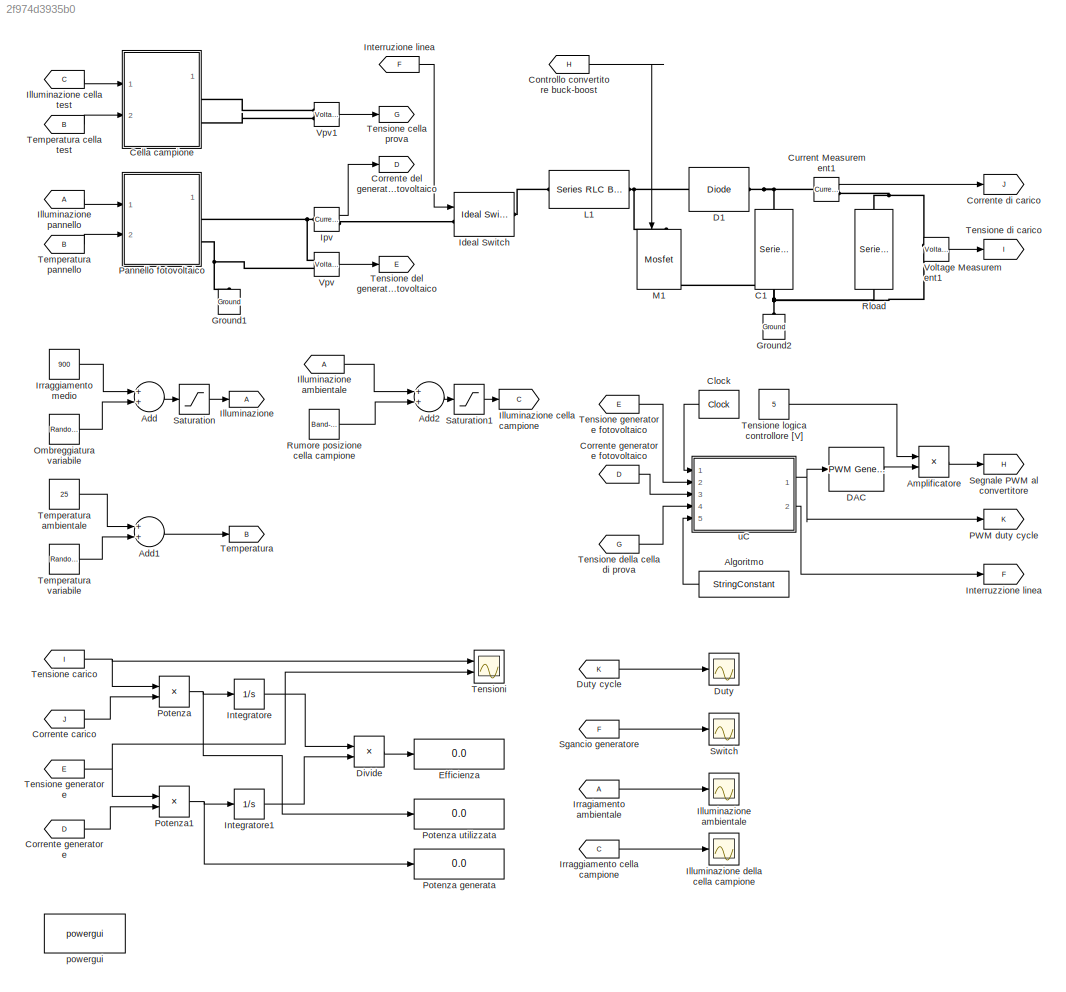
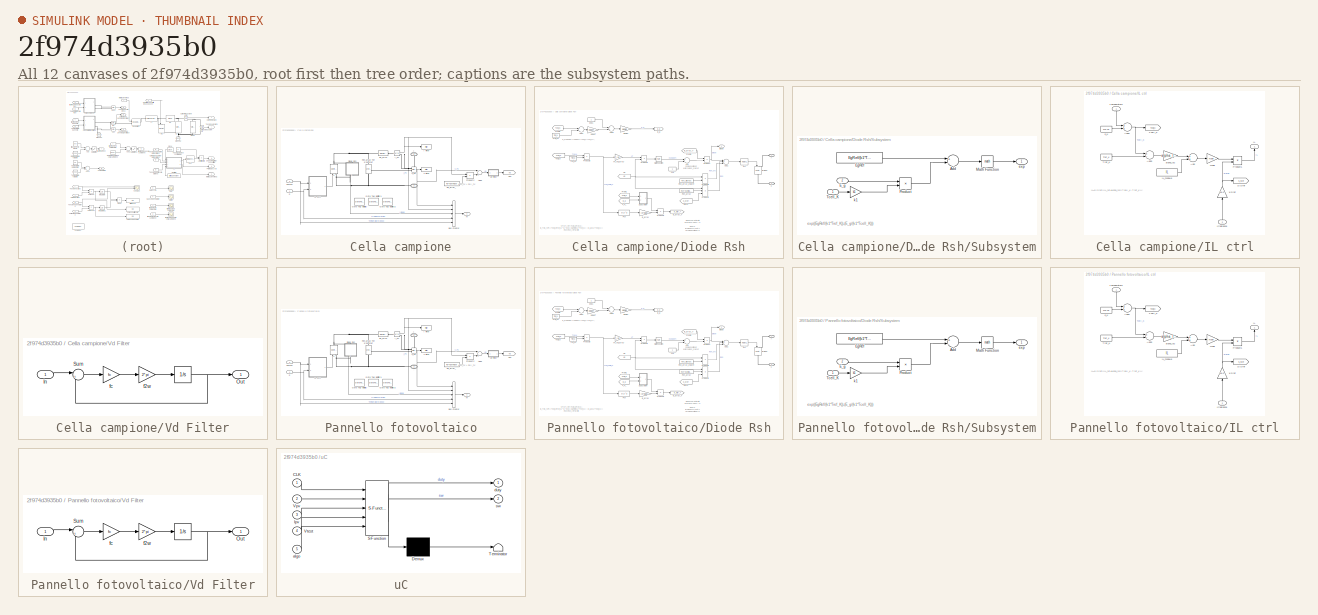
[diagram: thumbnail index - all 12 canvases of the model, root first then tree order]
MODEL slx_2f974d3935b0
KIND model
CONFIG AbsTol = auto
CONFIG EnableMultiTasking = off
CONFIG FixedStep = auto
CONFIG MaxStep = auto
CONFIG MinStep = auto
CONFIG RelTol = 1e-3
CONFIG SampleTimeConstraint = Unconstrained
CONFIG Solver = VariableStepAuto
CONFIG SolverName = VariableStepAuto
CONFIG StartTime = 0.0
CONFIG StopTime = 60
BLOCK [Sum] Add
  InputSameDT = off
  OutDataTypeStr = Inherit: Inherit via internal rule
  Ports = [2, 1]
  SaturateOnIntegerOverflow = off
BLOCK [Sum] Add1
  InputSameDT = off
  OutDataTypeStr = Inherit: Inherit via internal rule
  Ports = [2, 1]
  SaturateOnIntegerOverflow = off
BLOCK [Sum] Add2
  InputSameDT = off
  OutDataTypeStr = Inherit: Inherit via internal rule
  Ports = [2, 1]
  SaturateOnIntegerOverflow = off
BLOCK [StringConstant] Algoritmo
  String = "pao"
BLOCK [Product] Amplificatore
  InputSameDT = off
  OutDataTypeStr = Inherit: Inherit via internal rule
  Ports = [2, 1]
  RndMeth = Floor
  SaturateOnIntegerOverflow = off
BLOCK [Reference] C1  REF=powerlib/Elements/Series RLC Branch
  Ports = [0, 0, 0, 0, 0, 1, 1]
  SourceBlock = powerlib/Elements/Series RLC Branch
  SourceProductBaseCode = PS
  SourceProductName = Simscape Electrical
  SourceType = Series RLC Branch
BLOCK [SubSystem] Cella campione
  CloseFcn = sps_rtmsupport('CloseFcn',gcbh);
  CopyFcn = sps_rtmsupport('CopyFcn',gcbh);
  DeleteFcn = sps_rtmsupport('DeleteFcn',gcbh);
  DialogController = POWERSYS.PowerSysDialog
  LoadFcn = sps_rtmsupport('LoadFcn',gcbh);
  ModelCloseFcn = sps_rtmsupport('ModelCloseFcn',gcbh);
  NameChangeFcn = sps_rtmsupport('NameChangeFcn',gcbh);
  OpenFcn = %assignin('base','PVMaskOpening',1);\n%open_system(gcb,'mask')\n%assignin('base','PVMaskOpening',0);\nsps_rtmsupport('OpenFcn',gcbh, [3 6 7 23]);
  Ports = [2, 1, 0, 0, 0, 0, 2]
  PostSaveFcn = sps_rtmsupport('PostSaveFcn',gcbh);
  PreCopyFcn = sps_rtmsupport('PreCopyFcn',gcbh);
  PreDeleteFcn = sps_rtmsupport('PreDeleteFcn',gcbh);
  PreSaveFcn = sps_rtmsupport('PreSaveFcn',gcbh);
  RequestExecContextInheritance = off
  StartFcn = sps_rtmsupport('StartFcn',gcbh);
  StopFcn = sps_rtmsupport('StopFcn',gcbh);
  UndoDeleteFcn = sps_rtmsupport('UndoDeleteFcn',gcbh);
BLOCK [PMIOPort] Cella campione/+
  Side = Right
BLOCK [PMIOPort] Cella campione/-
  Port = 2
  Side = Right
BLOCK [Sum] Cella campione/Add1
  InputSameDT = off
  OutDataTypeStr = Inherit: Inherit via internal rule
  Ports = [2, 1]
  SaturateOnIntegerOverflow = off
BLOCK [BusCreator] Cella campione/Bus Creator
  DisplayOption = bar
  InheritFromInputs = on
  Inputs = 5
  Ports = [5, 1]
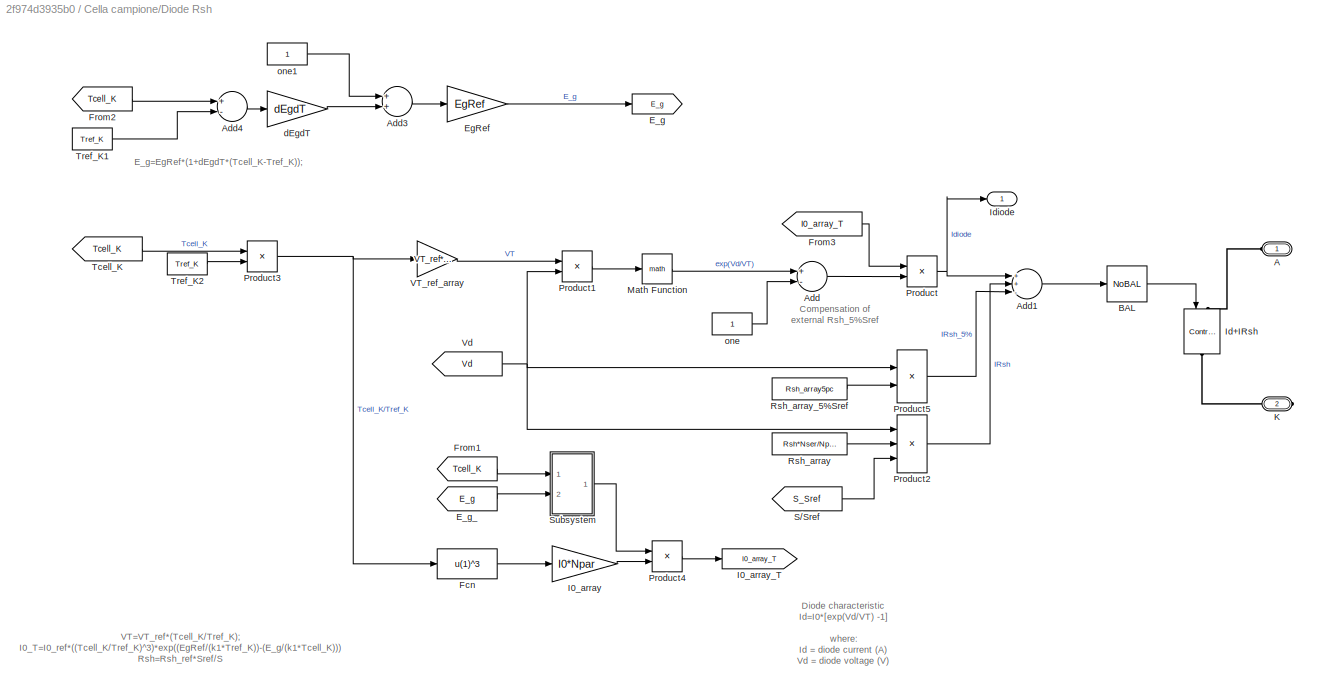
BLOCK [SubSystem] Cella campione/Diode Rsh
  Ports = [0, 1, 0, 0, 0, 1, 1]
  RequestExecContextInheritance = off
BLOCK [PMIOPort] Cella campione/Diode Rsh/A
  Side = Left
BLOCK [Sum] Cella campione/Diode Rsh/Add
  InputSameDT = off
  Inputs = +-
  OutDataTypeStr = Inherit: Inherit via internal rule
  Ports = [2, 1]
  SaturateOnIntegerOverflow = off
BLOCK [Sum] Cella campione/Diode Rsh/Add1
  InputSameDT = off
  Inputs = ++-
  OutDataTypeStr = Inherit: Inherit via internal rule
  Ports = [3, 1]
  SaturateOnIntegerOverflow = off
BLOCK [Sum] Cella campione/Diode Rsh/Add3
  InputSameDT = off
  OutDataTypeStr = Inherit: Inherit via internal rule
  Ports = [2, 1]
  SaturateOnIntegerOverflow = off
BLOCK [Sum] Cella campione/Diode Rsh/Add4
  InputSameDT = off
  Inputs = +-
  OutDataTypeStr = Inherit: Inherit via internal rule
  Ports = [2, 1]
  SaturateOnIntegerOverflow = off
BLOCK [Reference] Cella campione/Diode Rsh/BAL  REF=spsPVarrayModel/NoBAL
  Ports = [1, 1]
  SourceBlock = spsPVarrayModel/NoBAL
  SourceProductBaseCode = PS
  SourceProductName = Simscape Electrical
  SourceType = SubSystem
BLOCK [Goto] Cella campione/Diode Rsh/E_g
  GotoTag = E_g
BLOCK [From] Cella campione/Diode Rsh/E_g_
  GotoTag = E_g
BLOCK [Gain] Cella campione/Diode Rsh/EgRef
  Gain = EgRef
  OutDataTypeStr = Inherit: Inherit via internal rule
  ParamDataTypeStr = Inherit: Inherit via internal rule
  SaturateOnIntegerOverflow = off
BLOCK [Fcn] Cella campione/Diode Rsh/Fcn
  Expr = u(1)^3
BLOCK [From] Cella campione/Diode Rsh/From1
  GotoTag = Tcell_K
  TagVisibility = scoped
BLOCK [From] Cella campione/Diode Rsh/From2
  GotoTag = Tcell_K
  TagVisibility = scoped
BLOCK [From] Cella campione/Diode Rsh/From3
  GotoTag = I0_array_T
BLOCK [Gain] Cella campione/Diode Rsh/I0_array
  Gain = I0*Npar
  OutDataTypeStr = Inherit: Inherit via internal rule
  ParamDataTypeStr = Inherit: Inherit via internal rule
  SaturateOnIntegerOverflow = off
BLOCK [Goto] Cella campione/Diode Rsh/I0_array_T
  GotoTag = I0_array_T
BLOCK [Reference] Cella campione/Diode Rsh/Id+IRsh  REF=powerlib/Electrical
Sources/Controlled Current Source
  Ports = [1, 0, 0, 0, 0, 1, 1]
  SourceBlock = powerlib/Electrical\nSources/Controlled Current Source
  SourceProductBaseCode = PS
  SourceProductName = Simscape Electrical
  SourceType = Controlled Current Source
BLOCK [Outport] Cella campione/Diode Rsh/Idiode
  IconDisplay = Port number
BLOCK [PMIOPort] Cella campione/Diode Rsh/K
  Port = 2
  Side = Right
BLOCK [Math] Cella campione/Diode Rsh/Math Function
  Ports = [1, 1]
BLOCK [Product] Cella campione/Diode Rsh/Product
  InputSameDT = off
  OutDataTypeStr = Inherit: Inherit via internal rule
  Ports = [2, 1]
  SaturateOnIntegerOverflow = off
BLOCK [Product] Cella campione/Diode Rsh/Product1
  InputSameDT = off
  Inputs = /*
  OutDataTypeStr = Inherit: Inherit via internal rule
  Ports = [2, 1]
  SaturateOnIntegerOverflow = off
BLOCK [Product] Cella campione/Diode Rsh/Product2
  InputSameDT = off
  Inputs = */*
  OutDataTypeStr = Inherit: Inherit via internal rule
  Ports = [3, 1]
  SaturateOnIntegerOverflow = off
BLOCK [Product] Cella campione/Diode Rsh/Product3
  InputSameDT = off
  Inputs = */
  OutDataTypeStr = Inherit: Inherit via internal rule
  Ports = [2, 1]
  SaturateOnIntegerOverflow = off
BLOCK [Product] Cella campione/Diode Rsh/Product4
  InputSameDT = off
  Inputs = **
  OutDataTypeStr = Inherit: Inherit via internal rule
  Ports = [2, 1]
  SaturateOnIntegerOverflow = off
BLOCK [Product] Cella campione/Diode Rsh/Product5
  InputSameDT = off
  Inputs = */
  OutDataTypeStr = Inherit: Inherit via internal rule
  Ports = [2, 1]
  SaturateOnIntegerOverflow = off
BLOCK [Constant] Cella campione/Diode Rsh/Rsh_array
  Value = Rsh*Nser/Npar
BLOCK [Constant] Cella campione/Diode Rsh/Rsh_array_5%Sref
  Value = Rsh_array5pc
BLOCK [From] Cella campione/Diode Rsh/S//Sref
  GotoTag = S_Sref
  TagVisibility = scoped
BLOCK [SubSystem] Cella campione/Diode Rsh/Subsystem
  Ports = [2, 1]
  RequestExecContextInheritance = off
BLOCK [Sum] Cella campione/Diode Rsh/Subsystem/Add
  InputSameDT = off
  Inputs = +-
  OutDataTypeStr = Inherit: Inherit via internal rule
  Ports = [2, 1]
  SaturateOnIntegerOverflow = off
BLOCK [Inport] Cella campione/Diode Rsh/Subsystem/E_g
  IconDisplay = Port number
  Port = 2
BLOCK [Constant] Cella campione/Diode Rsh/Subsystem/EgRef
  Value = EgRef/(k1*Tref_K)
BLOCK [Math] Cella campione/Diode Rsh/Subsystem/Math Function
  Ports = [1, 1]
BLOCK [Product] Cella campione/Diode Rsh/Subsystem/Product
  InputSameDT = off
  Inputs = */
  OutDataTypeStr = Inherit: Inherit via internal rule
  Ports = [2, 1]
  RndMeth = Floor
  SaturateOnIntegerOverflow = off
BLOCK [Inport] Cella campione/Diode Rsh/Subsystem/Tcell_K
  IconDisplay = Port number
BLOCK [Outport] Cella campione/Diode Rsh/Subsystem/exp
  IconDisplay = Port number
BLOCK [Gain] Cella campione/Diode Rsh/Subsystem/k1
  Gain = k1
  OutDataTypeStr = Inherit: Inherit via internal rule
  ParamDataTypeStr = Inherit: Inherit via internal rule
  SaturateOnIntegerOverflow = off
BLOCK [From] Cella campione/Diode Rsh/Tcell_K
  GotoTag = Tcell_K
  TagVisibility = scoped
BLOCK [Constant] Cella campione/Diode Rsh/Tref_K1
  Value = Tref_K
BLOCK [Constant] Cella campione/Diode Rsh/Tref_K2
  Value = Tref_K
BLOCK [Gain] Cella campione/Diode Rsh/VT_ref_array
  Gain = VT_ref*Nser
  OutDataTypeStr = Inherit: Inherit via internal rule
  ParamDataTypeStr = Inherit: Inherit via internal rule
  SaturateOnIntegerOverflow = off
BLOCK [From] Cella campione/Diode Rsh/Vd
  GotoTag = Vd
  TagVisibility = scoped
BLOCK [Gain] Cella campione/Diode Rsh/dEgdT
  Gain = dEgdT
  OutDataTypeStr = Inherit: Inherit via internal rule
  ParamDataTypeStr = Inherit: Inherit via internal rule
  SaturateOnIntegerOverflow = off
BLOCK [Constant] Cella campione/Diode Rsh/one
BLOCK [Constant] Cella campione/Diode Rsh/one1
BLOCK [GotoTagVisibility] Cella campione/Goto Tag Visibility
  GotoTag = S_Sref
BLOCK [GotoTagVisibility] Cella campione/Goto Tag Visibility1
  GotoTag = Vd
BLOCK [GotoTagVisibility] Cella campione/Goto Tag Visibility2
  GotoTag = Tcell_K
BLOCK [Reference] Cella campione/I Filter  REF=spsPVarrayModel/Filter
  Commented = on
  Ports = [1, 1]
  SourceBlock = spsPVarrayModel/Filter
  SourceProductBaseCode = PS
  SourceProductName = Simscape Electrical
  SourceType = SubSystem
BLOCK [Reference] Cella campione/IL  REF=powerlib/Electrical
Sources/Controlled Current Source
  Ports = [1, 0, 0, 0, 0, 1, 1]
  SourceBlock = powerlib/Electrical\nSources/Controlled Current Source
  SourceProductBaseCode = PS
  SourceProductName = Simscape Electrical
  SourceType = Controlled Current Source
BLOCK [SubSystem] Cella campione/IL ctrl
  Ports = [2, 1]
  RequestExecContextInheritance = off
BLOCK [Constant] Cella campione/IL ctrl/0_K
  Value = 273.15
BLOCK [Gain] Cella campione/IL ctrl/1//Sref
  Gain = 1e-3
  OutDataTypeStr = Inherit: Inherit via internal rule
  ParamDataTypeStr = Inherit: Inherit via internal rule
  SaturateOnIntegerOverflow = off
BLOCK [Sum] Cella campione/IL ctrl/Add
  InputSameDT = off
  OutDataTypeStr = Inherit: Inherit via internal rule
  Ports = [2, 1]
  SaturateOnIntegerOverflow = off
BLOCK [Sum] Cella campione/IL ctrl/Add2
  InputSameDT = off
  OutDataTypeStr = Inherit: Inherit via internal rule
  Ports = [2, 1]
  SaturateOnIntegerOverflow = off
BLOCK [Sum] Cella campione/IL ctrl/Add3
  InputSameDT = off
  Inputs = +-
  OutDataTypeStr = Inherit: Inherit via internal rule
  Ports = [2, 1]
  SaturateOnIntegerOverflow = off
BLOCK [Outport] Cella campione/IL ctrl/IL
  IconDisplay = Port number
BLOCK [Constant] Cella campione/IL ctrl/IL_module
  Value = IL
BLOCK [Inport] Cella campione/IL ctrl/Irradiance
  IconDisplay = Port number
  Port = 2
BLOCK [Gain] Cella campione/IL ctrl/Npar
  Gain = Npar
  OutDataTypeStr = Inherit: Inherit via internal rule
  ParamDataTypeStr = Inherit: Inherit via internal rule
  SaturateOnIntegerOverflow = off
BLOCK [Product] Cella campione/IL ctrl/Product1
  InputSameDT = off
  Inputs = **
  OutDataTypeStr = Inherit: Inherit via internal rule
  Ports = [2, 1]
  SaturateOnIntegerOverflow = off
BLOCK [Goto] Cella campione/IL ctrl/S//Sref
  GotoTag = S_Sref
  TagVisibility = scoped
BLOCK [Goto] Cella campione/IL ctrl/Tcell_K
  GotoTag = Tcell_K
  TagVisibility = scoped
BLOCK [Inport] Cella campione/IL ctrl/Temperature
  IconDisplay = Port number
BLOCK [Constant] Cella campione/IL ctrl/Tref_K
  Value = Tref_K
BLOCK [Gain] Cella campione/IL ctrl/alpha_Isc
  Gain = alpha_Isc
  OutDataTypeStr = Inherit: Inherit via internal rule
  ParamDataTypeStr = Inherit: Inherit via internal rule
  SaturateOnIntegerOverflow = off
BLOCK [Reference] Cella campione/I_PV  REF=powerlib/Measurements/Current Measurement
  Ports = [0, 1, 0, 0, 0, 1, 1]
  SourceBlock = powerlib/Measurements/Current Measurement
  SourceProductBaseCode = PS
  SourceProductName = Simscape Electrical
  SourceType = Current Measurement
BLOCK [Product] Cella campione/Product2
  InputSameDT = off
  Inputs = **
  OutDataTypeStr = Inherit: Inherit via internal rule
  Ports = [2, 1]
  SaturateOnIntegerOverflow = off
BLOCK [Reference] Cella campione/Rs_array  REF=powerlib/Elements/Series RLC Branch
  Ports = [0, 0, 0, 0, 0, 1, 1]
  SourceBlock = powerlib/Elements/Series RLC Branch
  SourceProductBaseCode = PS
  SourceProductName = Simscape Electrical
  SourceType = Series RLC Branch
BLOCK [Constant] Cella campione/Rs_array_
  Value = Rs*Nser/Npar
BLOCK [Reference] Cella campione/Rsh_array For 0.05*Sref  REF=powerlib/Elements/Series RLC Branch
  Ports = [0, 0, 0, 0, 0, 1, 1]
  SourceBlock = powerlib/Elements/Series RLC Branch
  SourceProductBaseCode = PS
  SourceProductName = Simscape Electrical
  SourceType = Series RLC Branch
BLOCK [Inport] Cella campione/S
  IconDisplay = Port number
BLOCK [Inport] Cella campione/TempC
  IconDisplay = Port number
  Port = 2
BLOCK [Reference] Cella campione/V Filter  REF=spsPVarrayModel/Filter
  Commented = on
  Ports = [1, 1]
  SourceBlock = spsPVarrayModel/Filter
  SourceProductBaseCode = PS
  SourceProductName = Simscape Electrical
  SourceType = SubSystem
BLOCK [Reference] Cella campione/V_PV  REF=powerlib/Measurements/Voltage Measurement
  Ports = [0, 1, 0, 0, 0, 2]
  SourceBlock = powerlib/Measurements/Voltage Measurement
  SourceProductBaseCode = PS
  SourceProductName = Simscape Electrical
  SourceType = Voltage Measurement
BLOCK [SubSystem] Cella campione/Vd Filter
  Ports = [1, 1]
  RequestExecContextInheritance = off
BLOCK [Integrator] Cella campione/Vd Filter/ 
  InitialCondition = Voc*Nser
  Ports = [1, 1]
BLOCK [Inport] Cella campione/Vd Filter/In
  IconDisplay = Port number
BLOCK [Outport] Cella campione/Vd Filter/Out
  IconDisplay = Port number
BLOCK [Sum] Cella campione/Vd Filter/Sum
  IconShape = round
  InputSameDT = off
  Inputs = |+-
  OutDataTypeStr = Inherit: Inherit via internal rule
  Ports = [2, 1]
  SaturateOnIntegerOverflow = off
BLOCK [Gain] Cella campione/Vd Filter/f2w
  Gain = 2*pi
  OutDataTypeStr = Inherit: Inherit via internal rule
  ParamDataTypeStr = Inherit: Inherit via internal rule
  SaturateOnIntegerOverflow = off
BLOCK [Gain] Cella campione/Vd Filter/fc
  Gain = fc
  OutDataTypeStr = Inherit: Inherit via internal rule
  ParamDataTypeStr = Inherit: Inherit via internal rule
  SaturateOnIntegerOverflow = off
BLOCK [Goto] Cella campione/Vd1
  GotoTag = Vd
  TagVisibility = scoped
BLOCK [Outport] Cella campione/m
  IconDisplay = Port number
BLOCK [Reference] Clock   REF=simulink_extras/Flip Flops/Clock
  Ports = [0, 1]
  SourceBlock = simulink_extras/Flip Flops/Clock
  SourceProductBaseCode = SL
  SourceProductName = Simulink
  SourceType = Digital clock
BLOCK [From] Controllo convertitore buck-boost
  GotoTag = H
BLOCK [From] Corrente carico
  GotoTag = J
BLOCK [Goto] Corrente del generatore fotovoltaico
  GotoTag = D
BLOCK [Goto] Corrente di carico
  GotoTag = J
BLOCK [From] Corrente generatore
  GotoTag = D
BLOCK [From] Corrente generatore fotovoltaico
  GotoTag = D
BLOCK [Reference] Current Measurement1  REF=powerlib/Measurements/Current Measurement
  Ports = [0, 1, 0, 0, 0, 1, 1]
  SourceBlock = powerlib/Measurements/Current Measurement
  SourceProductBaseCode = PS
  SourceProductName = Simscape Electrical
  SourceType = Current Measurement
  UserDataPersistent = on
BLOCK [Reference] D1  REF=powerlib/Power
Electronics/Diode
  Ports = [0, 0, 0, 0, 0, 1, 1]
  SourceBlock = powerlib/Power\nElectronics/Diode
  SourceProductBaseCode = PS
  SourceProductName = Simscape Electrical
  SourceType = Diode
BLOCK [Reference] DAC  REF=powerlib_meascontrol/Pulse & Signal
Generators/PWM Generator
(DC-DC)
  Ports = [1, 1]
  SourceBlock = powerlib_meascontrol/Pulse & Signal\nGenerators/PWM Generator\n(DC-DC)
  SourceProductBaseCode = PS
  SourceProductName = Simscape Electrical
  SourceType = PWM Generator (DC-DC)
BLOCK [Product] Divide
  InputSameDT = off
  Inputs = */
  OutDataTypeStr = Inherit: Inherit via internal rule
  Ports = [2, 1]
  RndMeth = Floor
  SaturateOnIntegerOverflow = off
BLOCK [Scope] Duty
  Floating = off
  NumInputPorts = 1
  Ports = [1]
  ScopeSpecificationString = Simulink.scopes.TimeScopeBlockCfg('CurrentConfiguration', extmgr.ConfigurationSet(extmgr.Configuration('Core','General UI',true),extmgr.Configuration('Core','Source UI',true),extmgr.Configuration('Sources','WiredSimulink',true,'DataLoggingVariableName','ScopeData1'),extmgr.Configuration('Visuals','Time Domain',true,'SerializedDisplays',{struct('MinYLimReal','0.19682','MaxYLimReal','0.64321','YLabe...<+1410ch>
BLOCK [From] Duty cycle
  GotoTag = K
BLOCK [Display] Efficienza
  Decimation = 1
  Ports = [1]
BLOCK [Reference] Ground1  REF=powerlib/Elements/Ground
  Ports = [0, 0, 0, 0, 0, 1]
  SourceBlock = powerlib/Elements/Ground
  SourceProductBaseCode = PS
  SourceProductName = Simscape Electrical
  SourceType = Ground
BLOCK [Reference] Ground2  REF=powerlib/Elements/Ground
  Ports = [0, 0, 0, 0, 0, 1]
  SourceBlock = powerlib/Elements/Ground
  SourceProductBaseCode = PS
  SourceProductName = Simscape Electrical
  SourceType = Ground
BLOCK [Reference] Ideal Switch  REF=powerlib/Power
Electronics/Ideal Switch
  Ports = [1, 0, 0, 0, 0, 1, 1]
  SourceBlock = powerlib/Power\nElectronics/Ideal Switch
  SourceProductBaseCode = PS
  SourceProductName = Simscape Electrical
  SourceType = Ideal Switch
BLOCK [Goto] Illuminazione
BLOCK [From] Illuminazione ambientale
BLOCK [Goto] Illuminazione cella campione
  GotoTag = C
BLOCK [From] Illuminazione cella test
  GotoTag = C
BLOCK [Scope] Illuminazione della cella campione
  Floating = off
  NumInputPorts = 1
  Ports = [1]
  ScopeSpecificationString = Simulink.scopes.TimeScopeBlockCfg('CurrentConfiguration', extmgr.ConfigurationSet(extmgr.Configuration('Core','General UI',true),extmgr.Configuration('Core','Source UI',true),extmgr.Configuration('Sources','WiredSimulink',true,'DataLoggingVariableName','ScopeData2'),extmgr.Configuration('Visuals','Time Domain',true,'SerializedDisplays',{struct('MinYLimReal','888.85096','MaxYLimReal','922.30439','Y...<+1384ch>
BLOCK [From] Illuminazione pannello
BLOCK [Integrator] Integratore
  Ports = [1, 1]
BLOCK [Integrator] Integratore1
  Ports = [1, 1]
BLOCK [From] Interruzione linea
  GotoTag = F
BLOCK [Goto] Interruzzione linea
  GotoTag = F
BLOCK [Reference] Ipv  REF=powerlib/Measurements/Current Measurement
  Ports = [0, 1, 0, 0, 0, 1, 1]
  SourceBlock = powerlib/Measurements/Current Measurement
  SourceProductBaseCode = PS
  SourceProductName = Simscape Electrical
  SourceType = Current Measurement
  UserDataPersistent = on
BLOCK [From] Irraggiamento cella campione
  GotoTag = C
BLOCK [Constant] Irraggiamento medio
  Value = 900
BLOCK [From] Irragiamento ambientale
BLOCK [Reference] L1  REF=powerlib/Elements/Series RLC Branch
  Ports = [0, 0, 0, 0, 0, 1, 1]
  SourceBlock = powerlib/Elements/Series RLC Branch
  SourceProductBaseCode = PS
  SourceProductName = Simscape Electrical
  SourceType = Series RLC Branch
BLOCK [Reference] M1  REF=powerlib/Power
Electronics/Mosfet
  Ports = [1, 0, 0, 0, 0, 1, 1]
  SourceBlock = powerlib/Power\nElectronics/Mosfet
  SourceProductBaseCode = PS
  SourceProductName = Simscape Electrical
  SourceType = Mosfet
BLOCK [RandomNumber] Ombreggiatura variabile
  SampleTime = 0.5
  Variance = 100
BLOCK [Goto] PWM duty cycle
  GotoTag = K
BLOCK [SubSystem] Pannello fotovoltaico
  CloseFcn = sps_rtmsupport('CloseFcn',gcbh);
  CopyFcn = sps_rtmsupport('CopyFcn',gcbh);
  DeleteFcn = sps_rtmsupport('DeleteFcn',gcbh);
  DialogController = POWERSYS.PowerSysDialog
  LoadFcn = sps_rtmsupport('LoadFcn',gcbh);
  ModelCloseFcn = sps_rtmsupport('ModelCloseFcn',gcbh);
  NameChangeFcn = sps_rtmsupport('NameChangeFcn',gcbh);
  OpenFcn = %assignin('base','PVMaskOpening',1);\n%open_system(gcb,'mask')\n%assignin('base','PVMaskOpening',0);\nsps_rtmsupport('OpenFcn',gcbh, [3 6 7 23]);
  Ports = [2, 1, 0, 0, 0, 0, 2]
  PostSaveFcn = sps_rtmsupport('PostSaveFcn',gcbh);
  PreCopyFcn = sps_rtmsupport('PreCopyFcn',gcbh);
  PreDeleteFcn = sps_rtmsupport('PreDeleteFcn',gcbh);
  PreSaveFcn = sps_rtmsupport('PreSaveFcn',gcbh);
  RequestExecContextInheritance = off
  StartFcn = sps_rtmsupport('StartFcn',gcbh);
  StopFcn = sps_rtmsupport('StopFcn',gcbh);
  UndoDeleteFcn = sps_rtmsupport('UndoDeleteFcn',gcbh);
BLOCK [PMIOPort] Pannello fotovoltaico/+
  Side = Right
BLOCK [PMIOPort] Pannello fotovoltaico/-
  Port = 2
  Side = Right
BLOCK [Sum] Pannello fotovoltaico/Add1
  InputSameDT = off
  OutDataTypeStr = Inherit: Inherit via internal rule
  Ports = [2, 1]
  SaturateOnIntegerOverflow = off
BLOCK [BusCreator] Pannello fotovoltaico/Bus Creator
  DisplayOption = bar
  InheritFromInputs = on
  Inputs = 5
  Ports = [5, 1]
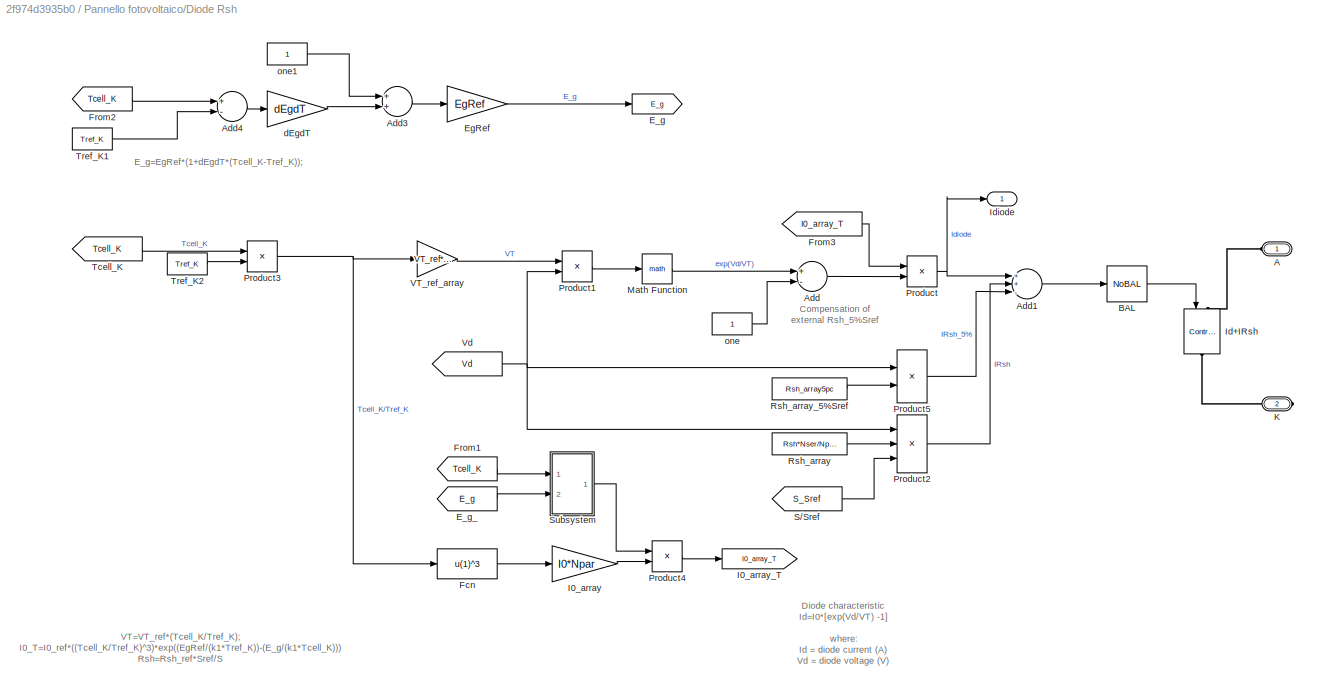
BLOCK [SubSystem] Pannello fotovoltaico/Diode Rsh
  Ports = [0, 1, 0, 0, 0, 1, 1]
  RequestExecContextInheritance = off
BLOCK [PMIOPort] Pannello fotovoltaico/Diode Rsh/A
  Side = Left
BLOCK [Sum] Pannello fotovoltaico/Diode Rsh/Add
  InputSameDT = off
  Inputs = +-
  OutDataTypeStr = Inherit: Inherit via internal rule
  Ports = [2, 1]
  SaturateOnIntegerOverflow = off
BLOCK [Sum] Pannello fotovoltaico/Diode Rsh/Add1
  InputSameDT = off
  Inputs = ++-
  OutDataTypeStr = Inherit: Inherit via internal rule
  Ports = [3, 1]
  SaturateOnIntegerOverflow = off
BLOCK [Sum] Pannello fotovoltaico/Diode Rsh/Add3
  InputSameDT = off
  OutDataTypeStr = Inherit: Inherit via internal rule
  Ports = [2, 1]
  SaturateOnIntegerOverflow = off
BLOCK [Sum] Pannello fotovoltaico/Diode Rsh/Add4
  InputSameDT = off
  Inputs = +-
  OutDataTypeStr = Inherit: Inherit via internal rule
  Ports = [2, 1]
  SaturateOnIntegerOverflow = off
BLOCK [Reference] Pannello fotovoltaico/Diode Rsh/BAL  REF=spsPVarrayModel/NoBAL
  Ports = [1, 1]
  SourceBlock = spsPVarrayModel/NoBAL
  SourceProductBaseCode = PS
  SourceProductName = Simscape Electrical
  SourceType = SubSystem
BLOCK [Goto] Pannello fotovoltaico/Diode Rsh/E_g
  GotoTag = E_g
BLOCK [From] Pannello fotovoltaico/Diode Rsh/E_g_
  GotoTag = E_g
BLOCK [Gain] Pannello fotovoltaico/Diode Rsh/EgRef
  Gain = EgRef
  OutDataTypeStr = Inherit: Inherit via internal rule
  ParamDataTypeStr = Inherit: Inherit via internal rule
  SaturateOnIntegerOverflow = off
BLOCK [Fcn] Pannello fotovoltaico/Diode Rsh/Fcn
  Expr = u(1)^3
BLOCK [From] Pannello fotovoltaico/Diode Rsh/From1
  GotoTag = Tcell_K
  TagVisibility = scoped
BLOCK [From] Pannello fotovoltaico/Diode Rsh/From2
  GotoTag = Tcell_K
  TagVisibility = scoped
BLOCK [From] Pannello fotovoltaico/Diode Rsh/From3
  GotoTag = I0_array_T
BLOCK [Gain] Pannello fotovoltaico/Diode Rsh/I0_array
  Gain = I0*Npar
  OutDataTypeStr = Inherit: Inherit via internal rule
  ParamDataTypeStr = Inherit: Inherit via internal rule
  SaturateOnIntegerOverflow = off
BLOCK [Goto] Pannello fotovoltaico/Diode Rsh/I0_array_T
  GotoTag = I0_array_T
BLOCK [Reference] Pannello fotovoltaico/Diode Rsh/Id+IRsh  REF=powerlib/Electrical
Sources/Controlled Current Source
  Ports = [1, 0, 0, 0, 0, 1, 1]
  SourceBlock = powerlib/Electrical\nSources/Controlled Current Source
  SourceProductBaseCode = PS
  SourceProductName = Simscape Electrical
  SourceType = Controlled Current Source
BLOCK [Outport] Pannello fotovoltaico/Diode Rsh/Idiode
  IconDisplay = Port number
BLOCK [PMIOPort] Pannello fotovoltaico/Diode Rsh/K
  Port = 2
  Side = Right
BLOCK [Math] Pannello fotovoltaico/Diode Rsh/Math Function
  Ports = [1, 1]
BLOCK [Product] Pannello fotovoltaico/Diode Rsh/Product
  InputSameDT = off
  OutDataTypeStr = Inherit: Inherit via internal rule
  Ports = [2, 1]
  SaturateOnIntegerOverflow = off
BLOCK [Product] Pannello fotovoltaico/Diode Rsh/Product1
  InputSameDT = off
  Inputs = /*
  OutDataTypeStr = Inherit: Inherit via internal rule
  Ports = [2, 1]
  SaturateOnIntegerOverflow = off
BLOCK [Product] Pannello fotovoltaico/Diode Rsh/Product2
  InputSameDT = off
  Inputs = */*
  OutDataTypeStr = Inherit: Inherit via internal rule
  Ports = [3, 1]
  SaturateOnIntegerOverflow = off
BLOCK [Product] Pannello fotovoltaico/Diode Rsh/Product3
  InputSameDT = off
  Inputs = */
  OutDataTypeStr = Inherit: Inherit via internal rule
  Ports = [2, 1]
  SaturateOnIntegerOverflow = off
BLOCK [Product] Pannello fotovoltaico/Diode Rsh/Product4
  InputSameDT = off
  Inputs = **
  OutDataTypeStr = Inherit: Inherit via internal rule
  Ports = [2, 1]
  SaturateOnIntegerOverflow = off
BLOCK [Product] Pannello fotovoltaico/Diode Rsh/Product5
  InputSameDT = off
  Inputs = */
  OutDataTypeStr = Inherit: Inherit via internal rule
  Ports = [2, 1]
  SaturateOnIntegerOverflow = off
BLOCK [Constant] Pannello fotovoltaico/Diode Rsh/Rsh_array
  Value = Rsh*Nser/Npar
BLOCK [Constant] Pannello fotovoltaico/Diode Rsh/Rsh_array_5%Sref
  Value = Rsh_array5pc
BLOCK [From] Pannello fotovoltaico/Diode Rsh/S//Sref
  GotoTag = S_Sref
  TagVisibility = scoped
BLOCK [SubSystem] Pannello fotovoltaico/Diode Rsh/Subsystem
  Ports = [2, 1]
  RequestExecContextInheritance = off
BLOCK [Sum] Pannello fotovoltaico/Diode Rsh/Subsystem/Add
  InputSameDT = off
  Inputs = +-
  OutDataTypeStr = Inherit: Inherit via internal rule
  Ports = [2, 1]
  SaturateOnIntegerOverflow = off
BLOCK [Inport] Pannello fotovoltaico/Diode Rsh/Subsystem/E_g
  IconDisplay = Port number
  Port = 2
BLOCK [Constant] Pannello fotovoltaico/Diode Rsh/Subsystem/EgRef
  Value = EgRef/(k1*Tref_K)
BLOCK [Math] Pannello fotovoltaico/Diode Rsh/Subsystem/Math Function
  Ports = [1, 1]
BLOCK [Product] Pannello fotovoltaico/Diode Rsh/Subsystem/Product
  InputSameDT = off
  Inputs = */
  OutDataTypeStr = Inherit: Inherit via internal rule
  Ports = [2, 1]
  RndMeth = Floor
  SaturateOnIntegerOverflow = off
BLOCK [Inport] Pannello fotovoltaico/Diode Rsh/Subsystem/Tcell_K
  IconDisplay = Port number
BLOCK [Outport] Pannello fotovoltaico/Diode Rsh/Subsystem/exp
  IconDisplay = Port number
BLOCK [Gain] Pannello fotovoltaico/Diode Rsh/Subsystem/k1
  Gain = k1
  OutDataTypeStr = Inherit: Inherit via internal rule
  ParamDataTypeStr = Inherit: Inherit via internal rule
  SaturateOnIntegerOverflow = off
BLOCK [From] Pannello fotovoltaico/Diode Rsh/Tcell_K
  GotoTag = Tcell_K
  TagVisibility = scoped
BLOCK [Constant] Pannello fotovoltaico/Diode Rsh/Tref_K1
  Value = Tref_K
BLOCK [Constant] Pannello fotovoltaico/Diode Rsh/Tref_K2
  Value = Tref_K
BLOCK [Gain] Pannello fotovoltaico/Diode Rsh/VT_ref_array
  Gain = VT_ref*Nser
  OutDataTypeStr = Inherit: Inherit via internal rule
  ParamDataTypeStr = Inherit: Inherit via internal rule
  SaturateOnIntegerOverflow = off
BLOCK [From] Pannello fotovoltaico/Diode Rsh/Vd
  GotoTag = Vd
  TagVisibility = scoped
BLOCK [Gain] Pannello fotovoltaico/Diode Rsh/dEgdT
  Gain = dEgdT
  OutDataTypeStr = Inherit: Inherit via internal rule
  ParamDataTypeStr = Inherit: Inherit via internal rule
  SaturateOnIntegerOverflow = off
BLOCK [Constant] Pannello fotovoltaico/Diode Rsh/one
BLOCK [Constant] Pannello fotovoltaico/Diode Rsh/one1
BLOCK [GotoTagVisibility] Pannello fotovoltaico/Goto Tag Visibility
  GotoTag = S_Sref
BLOCK [GotoTagVisibility] Pannello fotovoltaico/Goto Tag Visibility1
  GotoTag = Vd
BLOCK [GotoTagVisibility] Pannello fotovoltaico/Goto Tag Visibility2
  GotoTag = Tcell_K
BLOCK [Reference] Pannello fotovoltaico/I Filter  REF=spsPVarrayModel/Filter
  Commented = on
  Ports = [1, 1]
  SourceBlock = spsPVarrayModel/Filter
  SourceProductBaseCode = PS
  SourceProductName = Simscape Electrical
  SourceType = SubSystem
BLOCK [Reference] Pannello fotovoltaico/IL  REF=powerlib/Electrical
Sources/Controlled Current Source
  Ports = [1, 0, 0, 0, 0, 1, 1]
  SourceBlock = powerlib/Electrical\nSources/Controlled Current Source
  SourceProductBaseCode = PS
  SourceProductName = Simscape Electrical
  SourceType = Controlled Current Source
BLOCK [SubSystem] Pannello fotovoltaico/IL ctrl
  Ports = [2, 1]
  RequestExecContextInheritance = off
BLOCK [Constant] Pannello fotovoltaico/IL ctrl/0_K
  Value = 273.15
BLOCK [Gain] Pannello fotovoltaico/IL ctrl/1//Sref
  Gain = 1e-3
  OutDataTypeStr = Inherit: Inherit via internal rule
  ParamDataTypeStr = Inherit: Inherit via internal rule
  SaturateOnIntegerOverflow = off
BLOCK [Sum] Pannello fotovoltaico/IL ctrl/Add
  InputSameDT = off
  OutDataTypeStr = Inherit: Inherit via internal rule
  Ports = [2, 1]
  SaturateOnIntegerOverflow = off
BLOCK [Sum] Pannello fotovoltaico/IL ctrl/Add2
  InputSameDT = off
  OutDataTypeStr = Inherit: Inherit via internal rule
  Ports = [2, 1]
  SaturateOnIntegerOverflow = off
BLOCK [Sum] Pannello fotovoltaico/IL ctrl/Add3
  InputSameDT = off
  Inputs = +-
  OutDataTypeStr = Inherit: Inherit via internal rule
  Ports = [2, 1]
  SaturateOnIntegerOverflow = off
BLOCK [Outport] Pannello fotovoltaico/IL ctrl/IL
  IconDisplay = Port number
BLOCK [Constant] Pannello fotovoltaico/IL ctrl/IL_module
  Value = IL
BLOCK [Inport] Pannello fotovoltaico/IL ctrl/Irradiance
  IconDisplay = Port number
  Port = 2
BLOCK [Gain] Pannello fotovoltaico/IL ctrl/Npar
  Gain = Npar
  OutDataTypeStr = Inherit: Inherit via internal rule
  ParamDataTypeStr = Inherit: Inherit via internal rule
  SaturateOnIntegerOverflow = off
BLOCK [Product] Pannello fotovoltaico/IL ctrl/Product1
  InputSameDT = off
  Inputs = **
  OutDataTypeStr = Inherit: Inherit via internal rule
  Ports = [2, 1]
  SaturateOnIntegerOverflow = off
BLOCK [Goto] Pannello fotovoltaico/IL ctrl/S//Sref
  GotoTag = S_Sref
  TagVisibility = scoped
BLOCK [Goto] Pannello fotovoltaico/IL ctrl/Tcell_K
  GotoTag = Tcell_K
  TagVisibility = scoped
BLOCK [Inport] Pannello fotovoltaico/IL ctrl/Temperature
  IconDisplay = Port number
BLOCK [Constant] Pannello fotovoltaico/IL ctrl/Tref_K
  Value = Tref_K
BLOCK [Gain] Pannello fotovoltaico/IL ctrl/alpha_Isc
  Gain = alpha_Isc
  OutDataTypeStr = Inherit: Inherit via internal rule
  ParamDataTypeStr = Inherit: Inherit via internal rule
  SaturateOnIntegerOverflow = off
BLOCK [Reference] Pannello fotovoltaico/I_PV  REF=powerlib/Measurements/Current Measurement
  Ports = [0, 1, 0, 0, 0, 1, 1]
  SourceBlock = powerlib/Measurements/Current Measurement
  SourceProductBaseCode = PS
  SourceProductName = Simscape Electrical
  SourceType = Current Measurement
BLOCK [Product] Pannello fotovoltaico/Product2
  InputSameDT = off
  Inputs = **
  OutDataTypeStr = Inherit: Inherit via internal rule
  Ports = [2, 1]
  SaturateOnIntegerOverflow = off
BLOCK [Reference] Pannello fotovoltaico/Rs_array  REF=powerlib/Elements/Series RLC Branch
  Ports = [0, 0, 0, 0, 0, 1, 1]
  SourceBlock = powerlib/Elements/Series RLC Branch
  SourceProductBaseCode = PS
  SourceProductName = Simscape Electrical
  SourceType = Series RLC Branch
BLOCK [Constant] Pannello fotovoltaico/Rs_array_
  Value = Rs*Nser/Npar
BLOCK [Reference] Pannello fotovoltaico/Rsh_array For 0.05*Sref  REF=powerlib/Elements/Series RLC Branch
  Ports = [0, 0, 0, 0, 0, 1, 1]
  SourceBlock = powerlib/Elements/Series RLC Branch
  SourceProductBaseCode = PS
  SourceProductName = Simscape Electrical
  SourceType = Series RLC Branch
BLOCK [Inport] Pannello fotovoltaico/S
  IconDisplay = Port number
BLOCK [Inport] Pannello fotovoltaico/TempC
  IconDisplay = Port number
  Port = 2
BLOCK [Reference] Pannello fotovoltaico/V Filter  REF=spsPVarrayModel/Filter
  Commented = on
  Ports = [1, 1]
  SourceBlock = spsPVarrayModel/Filter
  SourceProductBaseCode = PS
  SourceProductName = Simscape Electrical
  SourceType = SubSystem
BLOCK [Reference] Pannello fotovoltaico/V_PV  REF=powerlib/Measurements/Voltage Measurement
  Ports = [0, 1, 0, 0, 0, 2]
  SourceBlock = powerlib/Measurements/Voltage Measurement
  SourceProductBaseCode = PS
  SourceProductName = Simscape Electrical
  SourceType = Voltage Measurement
BLOCK [SubSystem] Pannello fotovoltaico/Vd Filter
  Ports = [1, 1]
  RequestExecContextInheritance = off
BLOCK [Integrator] Pannello fotovoltaico/Vd Filter/ 
  InitialCondition = Voc*Nser
  Ports = [1, 1]
BLOCK [Inport] Pannello fotovoltaico/Vd Filter/In
  IconDisplay = Port number
BLOCK [Outport] Pannello fotovoltaico/Vd Filter/Out
  IconDisplay = Port number
BLOCK [Sum] Pannello fotovoltaico/Vd Filter/Sum
  IconShape = round
  InputSameDT = off
  Inputs = |+-
  OutDataTypeStr = Inherit: Inherit via internal rule
  Ports = [2, 1]
  SaturateOnIntegerOverflow = off
BLOCK [Gain] Pannello fotovoltaico/Vd Filter/f2w
  Gain = 2*pi
  OutDataTypeStr = Inherit: Inherit via internal rule
  ParamDataTypeStr = Inherit: Inherit via internal rule
  SaturateOnIntegerOverflow = off
BLOCK [Gain] Pannello fotovoltaico/Vd Filter/fc
  Gain = fc
  OutDataTypeStr = Inherit: Inherit via internal rule
  ParamDataTypeStr = Inherit: Inherit via internal rule
  SaturateOnIntegerOverflow = off
BLOCK [Goto] Pannello fotovoltaico/Vd1
  GotoTag = Vd
  TagVisibility = scoped
BLOCK [Outport] Pannello fotovoltaico/m
  IconDisplay = Port number
BLOCK [Product] Potenza
  InputSameDT = off
  OutDataTypeStr = Inherit: Inherit via internal rule
  Ports = [2, 1]
  RndMeth = Floor
  SaturateOnIntegerOverflow = off
BLOCK [Display] Potenza generata
  Decimation = 1
  Ports = [1]
BLOCK [Display] Potenza utilizzata
  Decimation = 1
  Ports = [1]
BLOCK [Product] Potenza1
  InputSameDT = off
  OutDataTypeStr = Inherit: Inherit via internal rule
  Ports = [2, 1]
  RndMeth = Floor
  SaturateOnIntegerOverflow = off
BLOCK [Reference] Rload  REF=powerlib/Elements/Series RLC Branch
  Ports = [0, 0, 0, 0, 0, 1, 1]
  SourceBlock = powerlib/Elements/Series RLC Branch
  SourceProductBaseCode = PS
  SourceProductName = Simscape Electrical
  SourceType = Series RLC Branch
BLOCK [Reference] Rumore posizione cella campione  REF=simulink/Sources/Band-Limited
White Noise
  Ports = [0, 1]
  SourceBlock = simulink/Sources/Band-Limited\nWhite Noise
  SourceProductBaseCode = SL
  SourceProductName = Simulink
  SourceType = Band-Limited White Noise.
BLOCK [Saturate] Saturation
  InputPortMap = u0
  LowerLimit = 0
  Ports = [1, 1]
  UpperLimit = 1000
BLOCK [Saturate] Saturation1
  InputPortMap = u0
  LowerLimit = 0
  Ports = [1, 1]
  UpperLimit = 1000
BLOCK [Goto] Segnale PWM al convertitore
  GotoTag = H
BLOCK [From] Sgancio generatore
  GotoTag = F
BLOCK [Scope] Switch
  Floating = off
  NumInputPorts = 1
  Ports = [1]
  ScopeSpecificationString = Simulink.scopes.TimeScopeBlockCfg('CurrentConfiguration', extmgr.ConfigurationSet(extmgr.Configuration('Core','General UI',true),extmgr.Configuration('Core','Source UI',true),extmgr.Configuration('Sources','WiredSimulink',true,'DataLoggingVariableName','ScopeData2'),extmgr.Configuration('Visuals','Time Domain',true,'SerializedDisplays',{struct('MinYLimReal','-0.125','MaxYLimReal','1.125','YLabelRe...<+1351ch>
BLOCK [Goto] Temperatura
  GotoTag = B
BLOCK [Constant] Temperatura ambientale
  Value = 25
BLOCK [From] Temperatura cella test
  GotoTag = B
BLOCK [From] Temperatura pannello
  GotoTag = B
BLOCK [RandomNumber] Temperatura variabile
  SampleTime = 1
  Variance = 10
BLOCK [From] Tensione carico
  GotoTag = I
BLOCK [Goto] Tensione cella prova
  GotoTag = G
BLOCK [Goto] Tensione del generatore fotovoltaico
  GotoTag = E
BLOCK [From] Tensione della cella di prova
  GotoTag = G
BLOCK [Goto] Tensione di carico
  GotoTag = I
BLOCK [From] Tensione generatore
  GotoTag = E
BLOCK [From] Tensione generatore fotovoltaico
  GotoTag = E
BLOCK [Constant] Tensione logica controllore [V]
  Value = 5
BLOCK [Scope] Tensioni
  Floating = off
  NumInputPorts = 2
  Ports = [2]
  ScopeSpecificationString = Simulink.scopes.TimeScopeBlockCfg('CurrentConfiguration', extmgr.ConfigurationSet(extmgr.Configuration('Core','General UI',true),extmgr.Configuration('Core','Source UI',true),extmgr.Configuration('Sources','WiredSimulink',true),extmgr.Configuration('Visuals','Time Domain',true,'SerializedDisplays',{struct('MinYLimReal','7.26961','MaxYLimReal','13.78884','YLabelReal','','MinYLimMag','7.26961','MaxY...<+1367ch>
BLOCK [Reference] Voltage Measurement1  REF=powerlib/Measurements/Voltage Measurement
  Ports = [0, 1, 0, 0, 0, 2]
  SourceBlock = powerlib/Measurements/Voltage Measurement
  SourceProductBaseCode = PS
  SourceProductName = Simscape Electrical
  SourceType = Voltage Measurement
  UserDataPersistent = on
BLOCK [Reference] Vpv  REF=powerlib/Measurements/Voltage Measurement
  Ports = [0, 1, 0, 0, 0, 2]
  SourceBlock = powerlib/Measurements/Voltage Measurement
  SourceProductBaseCode = PS
  SourceProductName = Simscape Electrical
  SourceType = Voltage Measurement
  UserDataPersistent = on
BLOCK [Reference] Vpv1  REF=powerlib/Measurements/Voltage Measurement
  Ports = [0, 1, 0, 0, 0, 2]
  SourceBlock = powerlib/Measurements/Voltage Measurement
  SourceProductBaseCode = PS
  SourceProductName = Simscape Electrical
  SourceType = Voltage Measurement
  UserDataPersistent = on
BLOCK [Reference] powergui  REF=powerlib/powergui
  Ports = []
  Priority = 1
  SourceBlock = powerlib/powergui
  SourceProductBaseCode = PS
  SourceProductName = Simscape Electrical
  SourceType = PSB option menu block
BLOCK [SubSystem] uC
  ErrorFcn = Stateflow.Translate.translate
  PermitHierarchicalResolution = ExplicitOnly
  Ports = [5, 2]
  RequestExecContextInheritance = off
  SFBlockType = MATLAB Function
  TreatAsAtomicUnit = on
BLOCK [Demux] uC/ Demux 
  Outputs = 1
  Ports = [1, 1]
BLOCK [S-Function] uC/ SFunction 
  EnableBusSupport = on
  FunctionName = sf_sfun
  PortCounts = [5 3]
  Ports = [5, 3]
  SFcnIsStateOwnerBlock = off
  SFunctionDeploymentMode = off
  Tag = Stateflow S-Function 2
BLOCK [Terminator] uC/ Terminator 
BLOCK [Inport] uC/CLK
  IconDisplay = Port number
BLOCK [Inport] uC/Ipv
  IconDisplay = Port number
  Port = 3
BLOCK [Inport] uC/Vpv
  IconDisplay = Port number
  Port = 2
BLOCK [Inport] uC/Vtest
  IconDisplay = Port number
  Port = 4
BLOCK [Inport] uC/algo
  IconDisplay = Port number
  Port = 5
BLOCK [Outport] uC/duty
  IconDisplay = Port number
BLOCK [Outport] uC/sw
  IconDisplay = Port number
  Port = 2
ANNOTATION Cella campione: Vd=V_PV + Rs*I_PV
ANNOTATION Cella campione/Diode Rsh: Compensation of external Rsh_5%Sref
ANNOTATION Cella campione/Diode Rsh: Diode characteristic Id=I0*[exp(Vd/VT) -1] where: Id = diode current (A) Vd = diode voltage (V) I0 = diode saturation current (A) VT = temperature voltage = k*Tcell_K/q*nI*Ncell*Nser Tcell_K = cell temperature (K), k = Boltzman constant = 1.3806e-23 J.K^-1 q = electron charge = 1.6022e-19 C nI = diode ideality factor Ncell= number of series-connected cells per module Nser = number of series-connec...<+22ch>
ANNOTATION Cella campione/Diode Rsh: E_g=EgRef*(1+dEgdT*(Tcell_K-Tref_K));
ANNOTATION Cella campione/Diode Rsh: VT=VT_ref*(Tcell_K/Tref_K); I0_T=I0_ref*((Tcell_K/Tref_K)^3)*exp((EgRef/(k1*Tref_K))-(E_g/(k1*Tcell_K))) Rsh=Rsh_ref*Sref/S
ANNOTATION Cella campione/Diode Rsh/Subsystem: exp((EgRef/(k1*Tref_K))-(E_g/(k1*Tcell_K)))
ANNOTATION Cella campione/IL ctrl: IL=S/Sref*(IL_ref+alpha_isc*(Tcell_K-Tref_K));
ANNOTATION Pannello fotovoltaico: Vd=V_PV + Rs*I_PV
ANNOTATION Pannello fotovoltaico/Diode Rsh: Compensation of external Rsh_5%Sref
ANNOTATION Pannello fotovoltaico/Diode Rsh: Diode characteristic Id=I0*[exp(Vd/VT) -1] where: Id = diode current (A) Vd = diode voltage (V) I0 = diode saturation current (A) VT = temperature voltage = k*Tcell_K/q*nI*Ncell*Nser Tcell_K = cell temperature (K), k = Boltzman constant = 1.3806e-23 J.K^-1 q = electron charge = 1.6022e-19 C nI = diode ideality factor Ncell= number of series-connected cells per module Nser = number of series-connec...<+22ch>
ANNOTATION Pannello fotovoltaico/Diode Rsh: E_g=EgRef*(1+dEgdT*(Tcell_K-Tref_K));
ANNOTATION Pannello fotovoltaico/Diode Rsh: VT=VT_ref*(Tcell_K/Tref_K); I0_T=I0_ref*((Tcell_K/Tref_K)^3)*exp((EgRef/(k1*Tref_K))-(E_g/(k1*Tcell_K))) Rsh=Rsh_ref*Sref/S
ANNOTATION Pannello fotovoltaico/Diode Rsh/Subsystem: exp((EgRef/(k1*Tref_K))-(E_g/(k1*Tcell_K)))
ANNOTATION Pannello fotovoltaico/IL ctrl: IL=S/Sref*(IL_ref+alpha_isc*(Tcell_K-Tref_K));
LINE Add1:1 -> Temperatura:1
LINE Add2:1 -> Saturation1:1
LINE Add:1 -> Saturation:1
LINE Algoritmo:1 -> uC:5
LINE Amplificatore:1 -> Segnale PWM al convertitore:1
LINE Clock :1 -> uC:1
LINE Controllo convertitore buck-boost:1 -> M1:1
LINE Corrente carico:1 -> Potenza:2
LINE Corrente generatore fotovoltaico:1 -> uC:3
LINE Corrente generatore:1 -> Potenza1:2
LINE Current Measurement1:1 -> Corrente di carico:1
LINE DAC:1 -> Amplificatore:2
LINE Divide:1 -> Efficienza:1
LINE Duty cycle:1 -> Duty:1
LINE Illuminazione ambientale:1 -> Add2:1
LINE Illuminazione cella test:1 -> Cella campione:1
LINE Illuminazione pannello:1 -> Pannello fotovoltaico:1
LINE Integratore1:1 -> Divide:2
LINE Integratore:1 -> Divide:1
LINE Interruzione linea:1 -> Ideal Switch:1
LINE Ipv:1 -> Corrente del generatore fotovoltaico:1
LINE Irraggiamento cella campione:1 -> Illuminazione della cella campione:1
LINE Irraggiamento medio:1 -> Add:1
LINE Irragiamento ambientale:1 -> Illuminazione ambientale:1
LINE Ombreggiatura variabile:1 -> Add:2
NET Potenza1:1 -> Integratore1:1, Potenza generata:1
NET Potenza:1 -> Integratore:1, Potenza utilizzata:1
LINE Rumore posizione cella campione:1 -> Add2:2
LINE Saturation1:1 -> Illuminazione cella campione:1
LINE Saturation:1 -> Illuminazione:1
LINE Sgancio generatore:1 -> Switch:1
LINE Temperatura ambientale:1 -> Add1:1
LINE Temperatura cella test:1 -> Cella campione:2
LINE Temperatura pannello:1 -> Pannello fotovoltaico:2
LINE Temperatura variabile:1 -> Add1:2
NET Tensione carico:1 -> Potenza:1, Tensioni:1
LINE Tensione della cella di prova:1 -> uC:4
LINE Tensione generatore fotovoltaico:1 -> uC:2
NET Tensione generatore:1 -> Potenza1:1, Tensioni:2
LINE Tensione logica controllore [V]:1 -> Amplificatore:1
LINE Voltage Measurement1:1 -> Tensione di carico:1
LINE Vpv1:1 -> Tensione cella prova:1
LINE Vpv:1 -> Tensione del generatore fotovoltaico:1
NET uC:1 -> DAC:1, PWM duty cycle:1
LINE uC:2 -> Interruzzione linea:1
PNET net1: C1:LConn1 -- Current Measurement1:LConn1 -- D1:RConn1
PNET net2: C1:RConn1 -- Ground2:LConn1 -- M1:RConn1 -- Rload:RConn1 -- Voltage Measurement1:LConn2
PLINE Cella campione:RConn1 -- Vpv1:LConn1
PLINE Cella campione:RConn2 -- Vpv1:LConn2
PNET net3: Current Measurement1:RConn1 -- Rload:LConn1 -- Voltage Measurement1:LConn1
PNET net4: D1:LConn1 -- L1:RConn1 -- M1:LConn1
PNET net5: Ground1:LConn1 -- Pannello fotovoltaico:RConn2 -- Vpv:LConn2
PLINE Ideal Switch:LConn1 -- Ipv:RConn1
PLINE Ideal Switch:RConn1 -- L1:LConn1
PNET net6: Ipv:LConn1 -- Pannello fotovoltaico:RConn1 -- Vpv:LConn1
note: NET lines group one-source signal fan-out (src -> all destinations, sorted); 1:1 wires keep LINE; PNET lines group multi-terminal physical nets as a canonical sorted terminal list (undirected conserving connections); 2-terminal nets keep the pairwise PLINE form
CHART uC states=1 transitions=1
  STATE_LABEL 'eML_blk_kernel()'
  STATE_LABEL 'SCRIPT:\nfunction [duty, sw]= controller(CLK, Vpv, Ipv, Vtest, algo)\n    % persistent state of the controller\n    persistent Pprev Vprev Iprev D checked step Vsel\n    % initial state check and clock emulation\n    if(isempty(checked))\n        checked = true;\n    end\n    if(isempty(Vsel))\n        Vsel = Vpv;\n    end\n    if(isempty(step))\n        step = 0;\n    end\n    if(isempty(D))\n       D = 0;\n    ...<+3529ch>'
